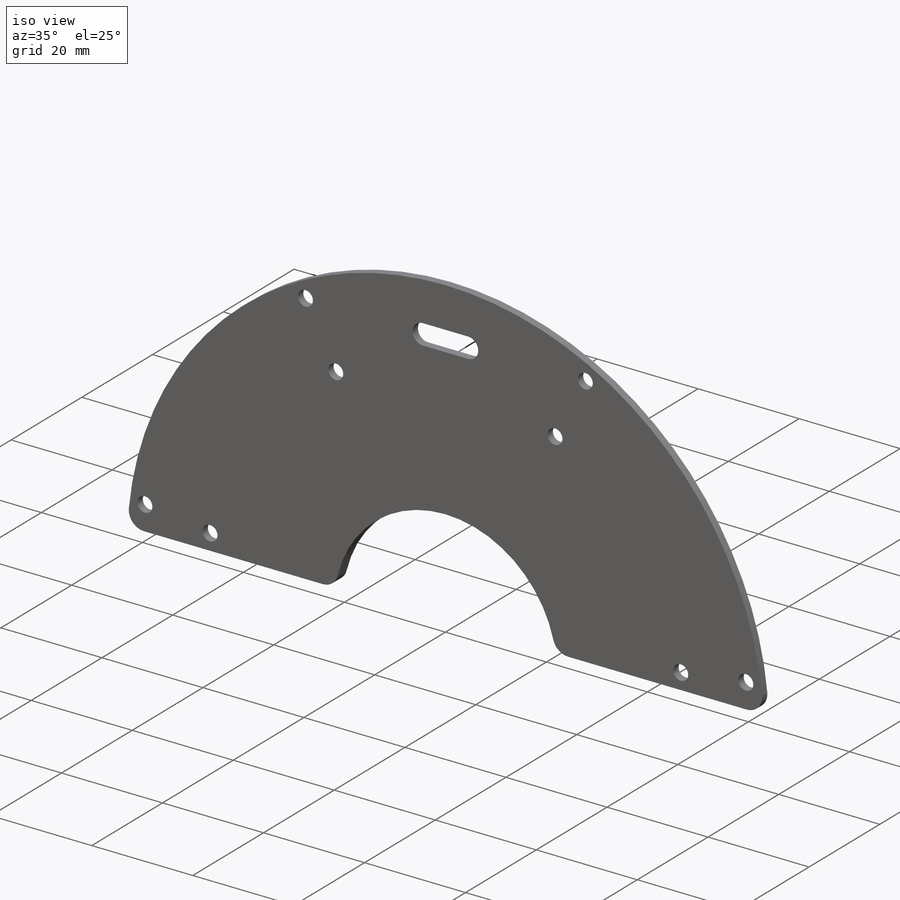
[diagram: iso view]
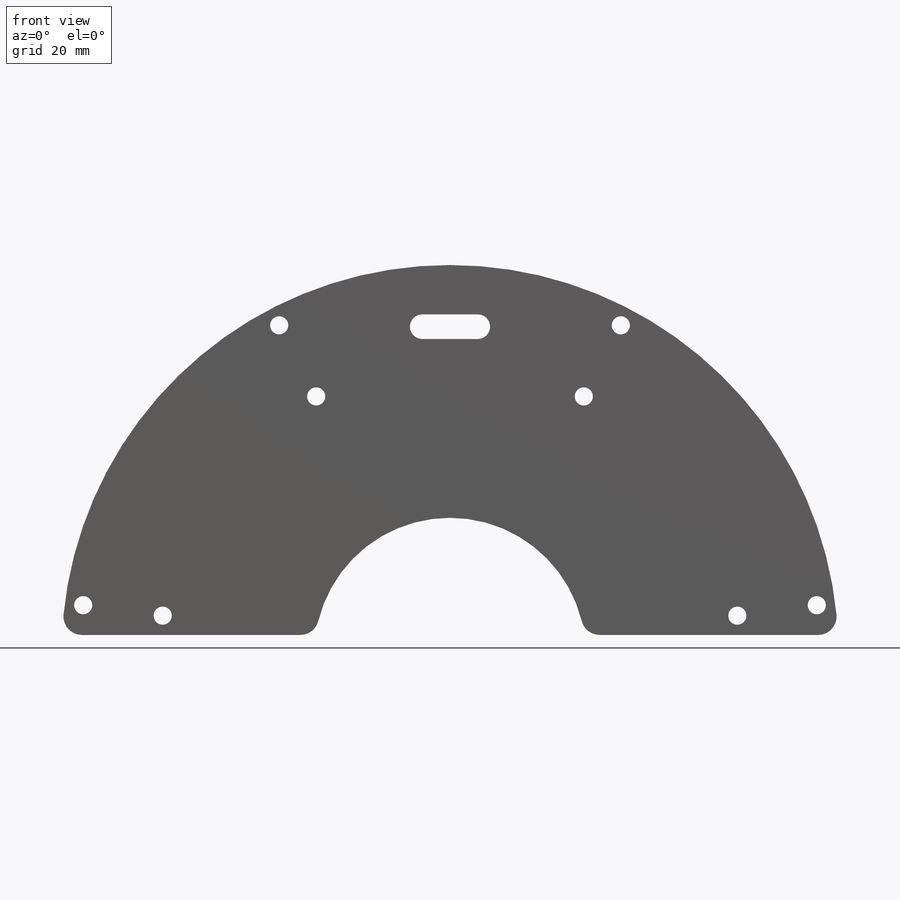
[diagram: front view]
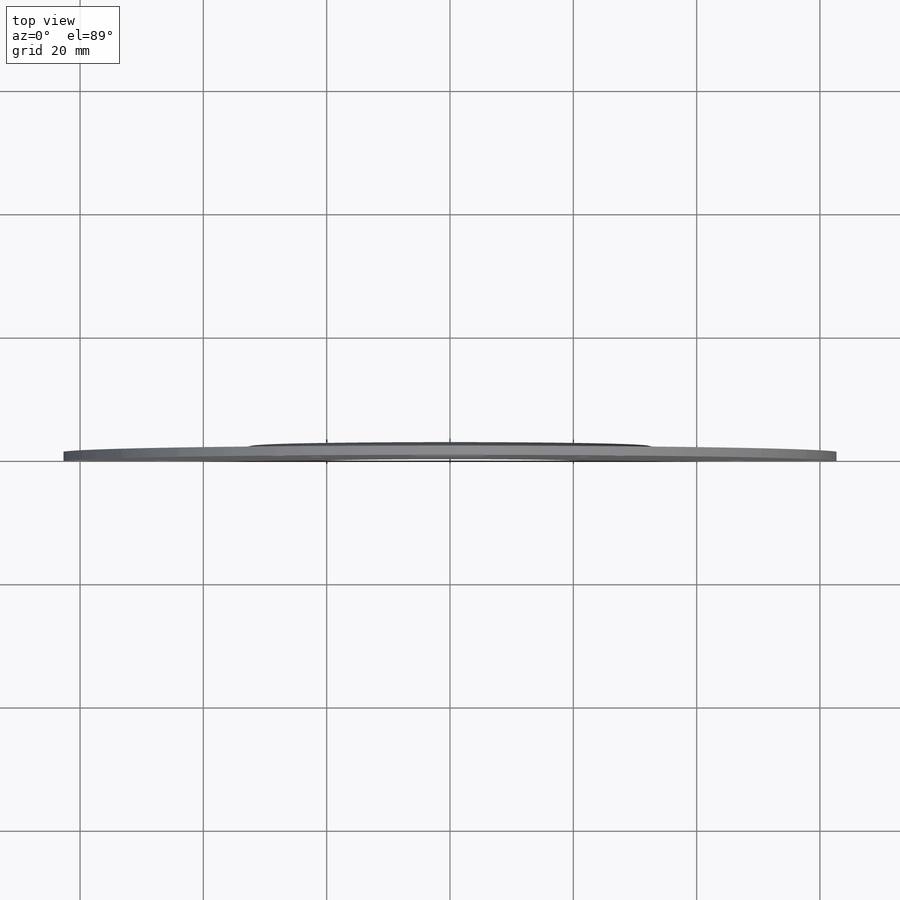
[diagram: top view]
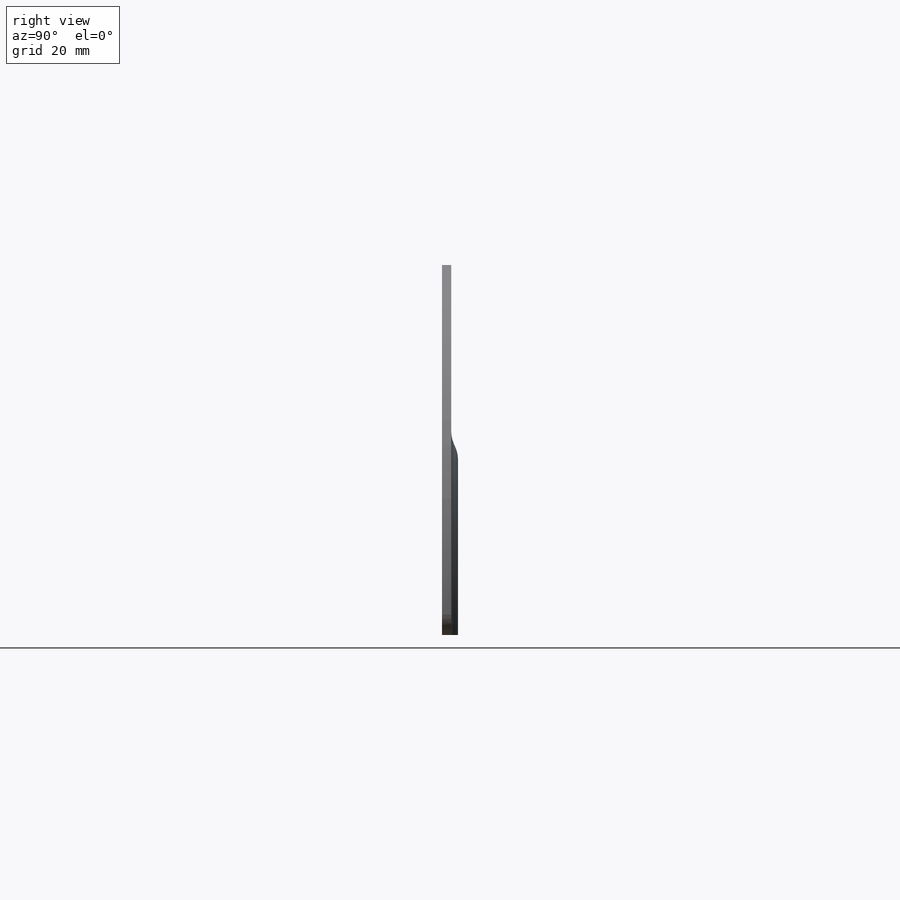
[diagram: right view]
SOLIDWORKS PART (.sldprt)
format: sldprt  version: not decoded by parser v0  size: 421,888 bytes
history: native  units: mm
features: sketch x5, cut_extrude x2, fillet x2, material x1, revolve x1, hole x1, pattern_circular x1 (+11 scaffold rows collapsed)
feature tree (24):
  scaffold x11  (default folders/planes/origin — collapsed)
  material  "Material <not specified>"
  sketch  "Sketch1"  dims[D1=63.0mm D2=22.0mm D3=1.5mm D4=2.6mm D5=35.0mm D6=2.5mm]
  revolve  "Revolve1"  Angle=360deg
  sketch  "Sketch2"  dims[D1=3.0mm]
  cut_extrude  "Cut-Extrude1"  [1 undecoded]
  fillet  "Fillet1"  Radius=5mm
  fillet  "Fillet2"  Radius=3mm
  hole  "#4 Clearance Hole1"  Diameter=2.9464mm Depth=135.89mm
  sketch  "Sketch4"  dims[c1.D1=~17.214615mm c2.D1=7.5deg c2.D2=60.0mm c2.D3=47.0mm]
  sketch  "Sketch3"  dims[hole-wizard template sketch: 47 standard entries collapsed; hole parameters kept: c15.Hole Depth=135.89mm c15.D3=~14.816244mm c15.Drill Angle=118.0deg]
  pattern_circular  "CirPattern1"  Count=4 Angle=55deg
  sketch  "Sketch5"  dims[D1=53.0mm D2=4.0mm D3=9.0mm]
  cut_extrude  "Cut-Extrude2"  [1 undecoded]
decode coverage: 10 of 12 modeling features carry decoded parameters
note: ~ marks probable driven/reference dimensions
note: 2 parameter values undecoded
note: suppression state not decoded; provenance and decode notes live in map.json
